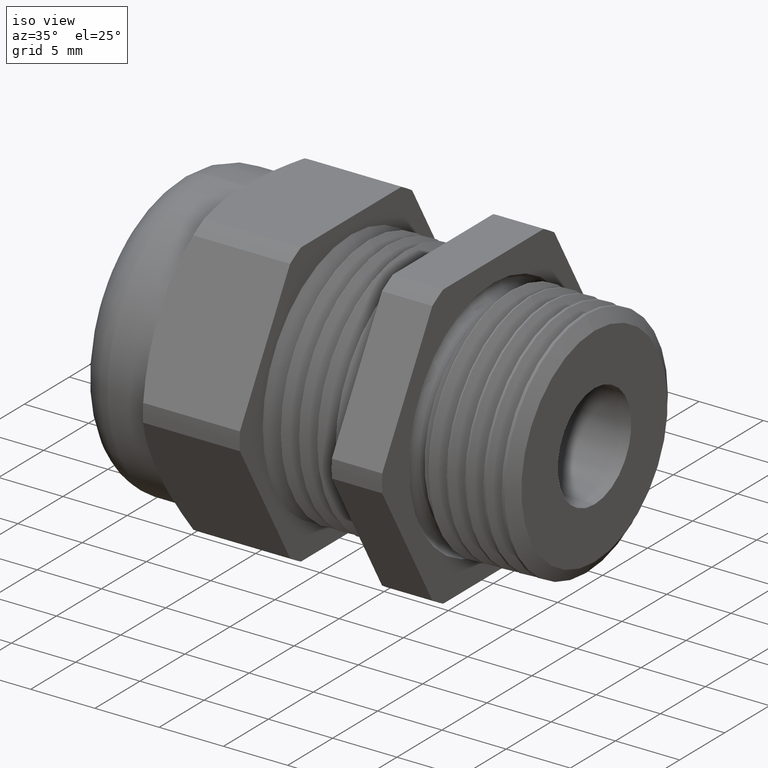
[diagram: clean part render]
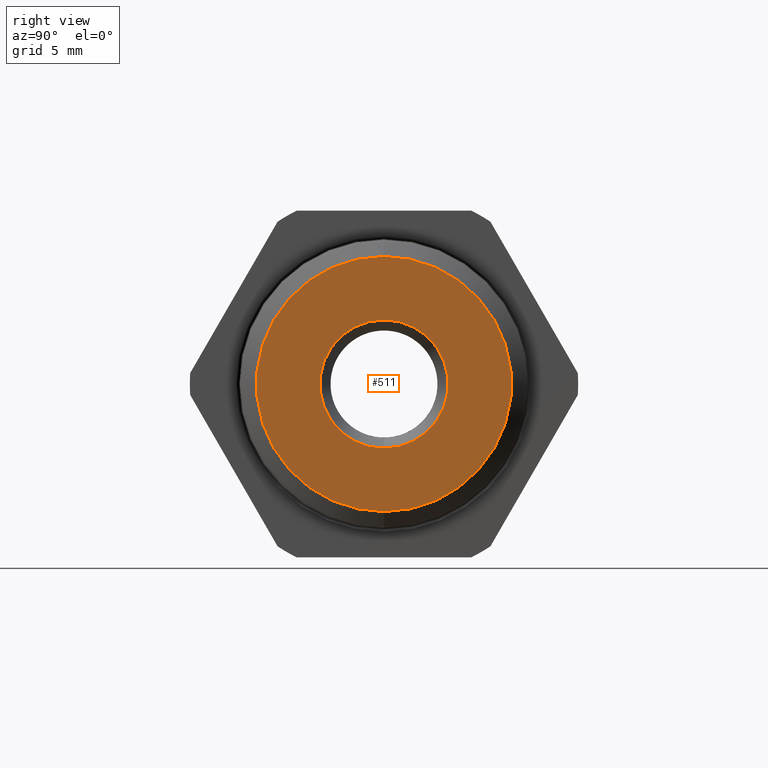
[diagram: tour spotlight — one face highlighted and labeled with its STEP entity id]
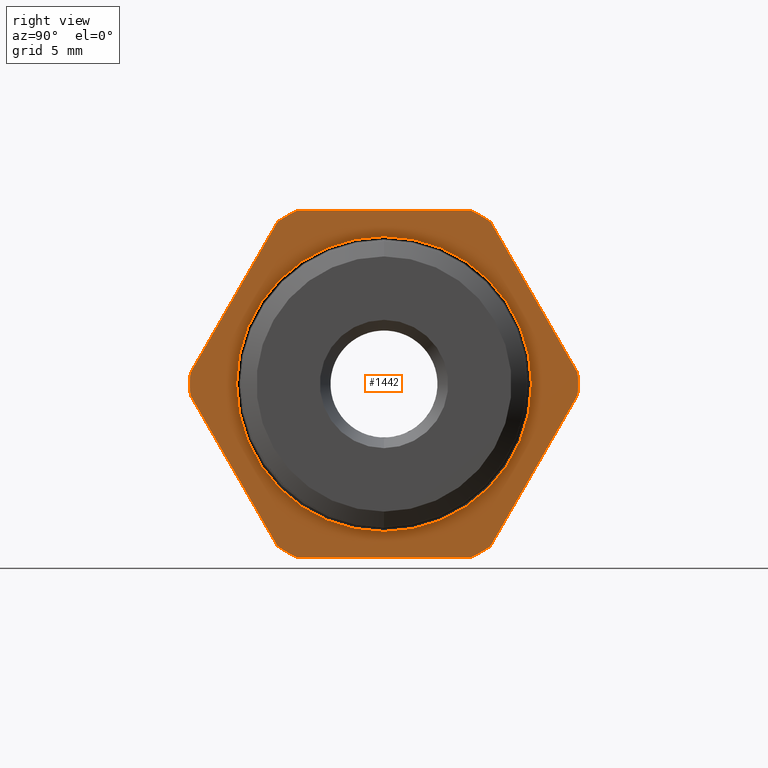
[diagram: tour spotlight — one face highlighted and labeled with its STEP entity id]
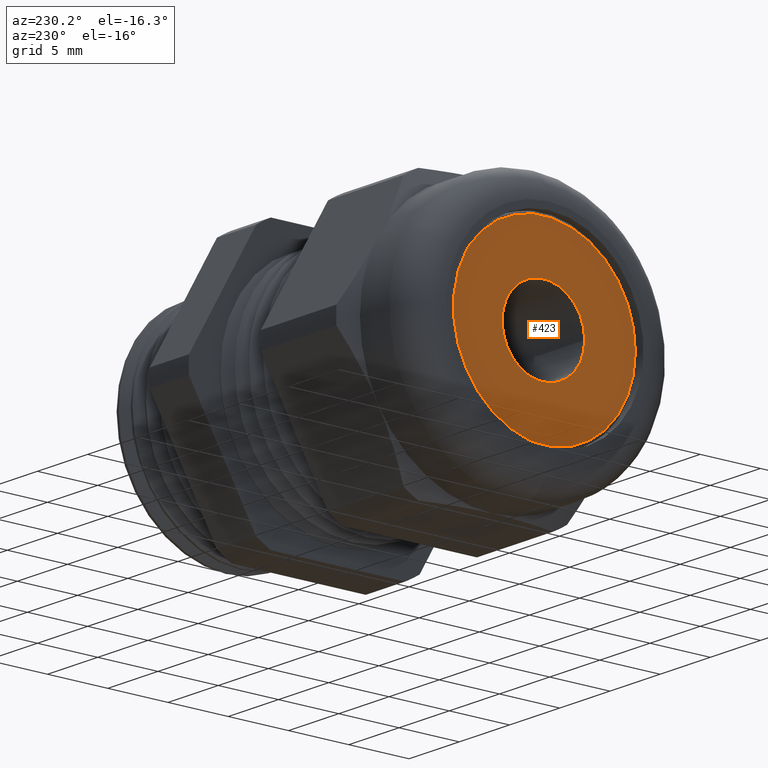
[diagram: tour spotlight — one face highlighted and labeled with its STEP entity id]
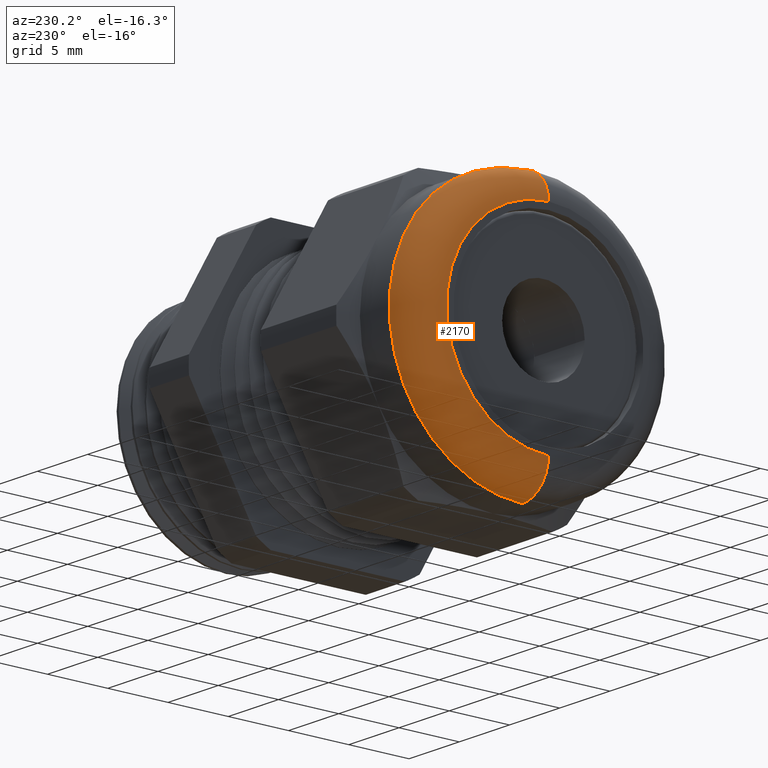
[diagram: tour spotlight — one face highlighted and labeled with its STEP entity id]
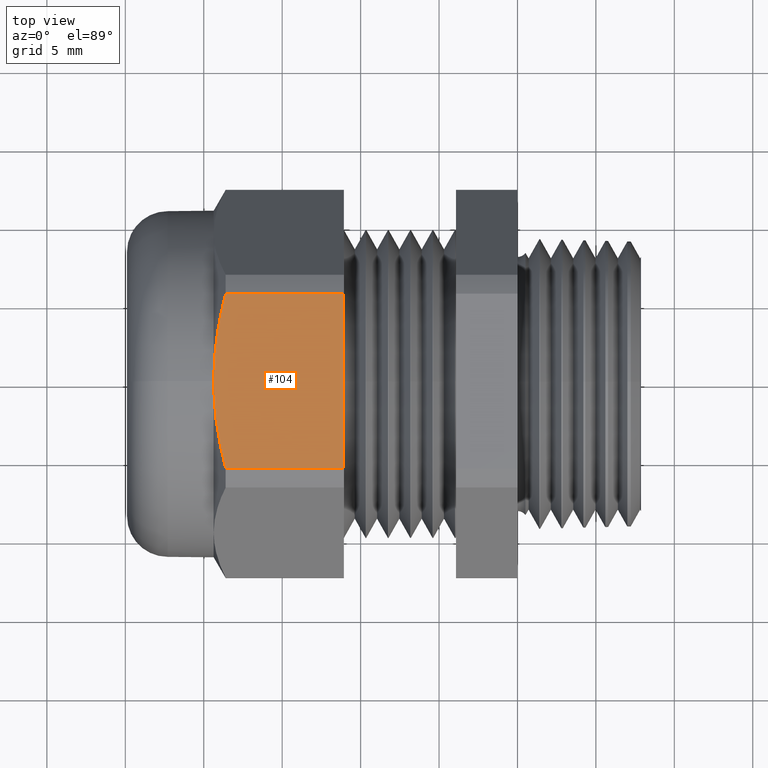
[diagram: tour spotlight — one face highlighted and labeled with its STEP entity id]
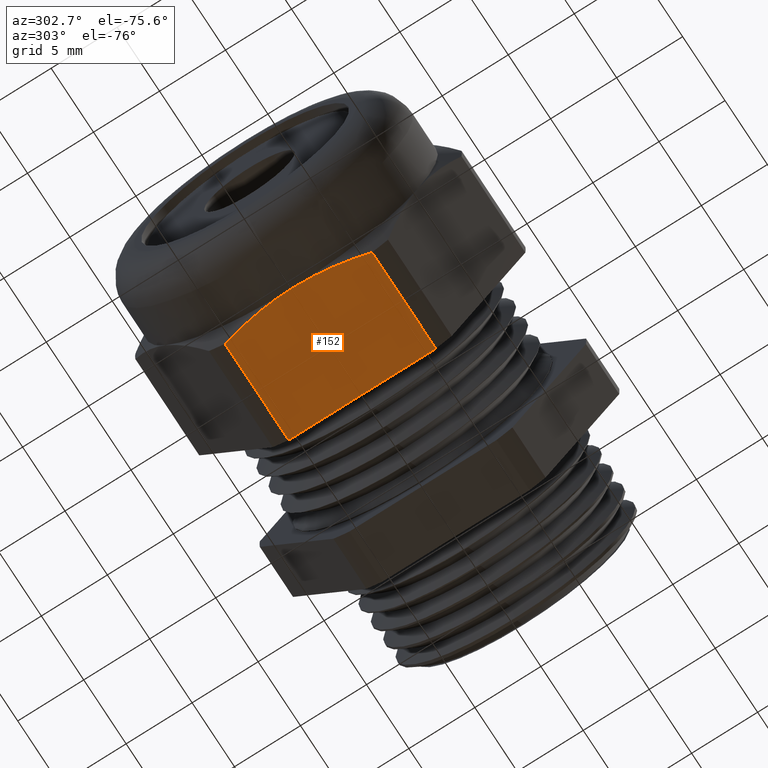
[diagram: tour spotlight — one face highlighted and labeled with its STEP entity id]
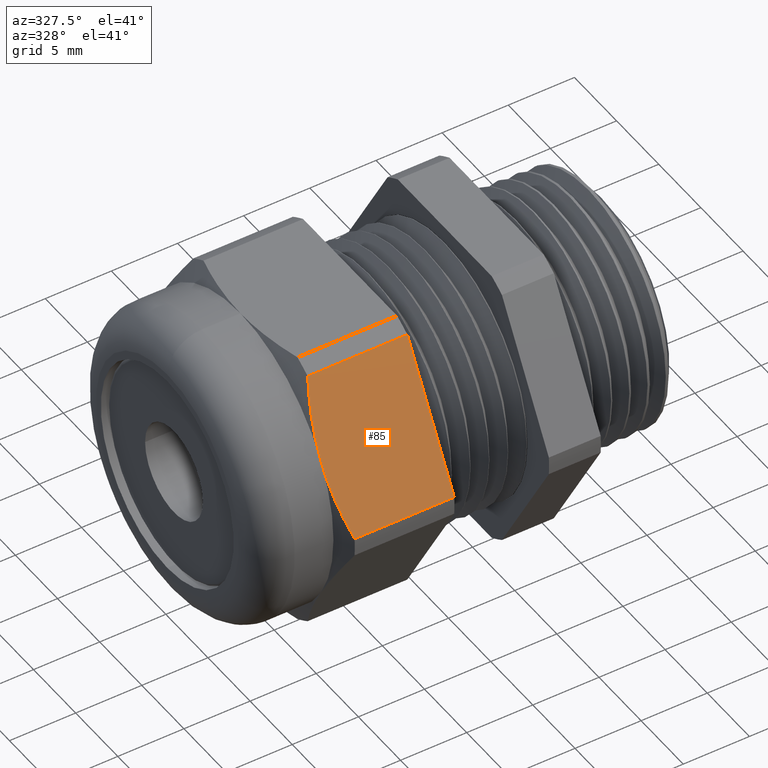
[diagram: tour spotlight — one face highlighted and labeled with its STEP entity id]
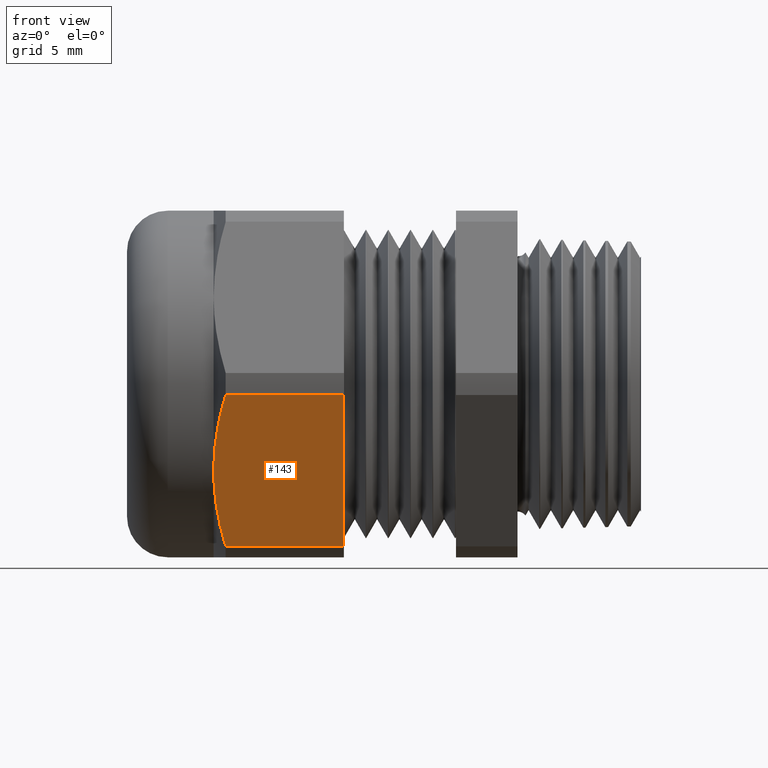
[diagram: tour spotlight — one face highlighted and labeled with its STEP entity id]
A machine part: a face-by-face anatomy tour. The part has 128 B-rep faces; the first image is the clean iso view, then the 8 largest visible faces are spotlighted one at a time (largest first), each with its STEP entity span.

Face 1 — right view, entity #511. In plain terms, the highlighted planar face has unit normal (-1, 0, 0).
Definition (entity closure, byte-faithful):
#331 = VERTEX_POINT ( 'NONE', #3162 ) ;
#444 = EDGE_CURVE ( 'NONE', #331, #446, #3338, .T. ) ;
#446 = VERTEX_POINT ( 'NONE', #3333 ) ;
#489 = EDGE_LOOP ( 'NONE', ( #494, #492 ) ) ;
#490 = ORIENTED_EDGE ( 'NONE', *, *, #491, .T. ) ;
#491 = EDGE_CURVE ( 'NONE', #2480, #2491, #3451, .T. ) ;
#492 = ORIENTED_EDGE ( 'NONE', *, *, #444, .F. ) ;
#494 = ORIENTED_EDGE ( 'NONE', *, *, #495, .F. ) ;
#495 = EDGE_CURVE ( 'NONE', #446, #331, #3441, .T. ) ;
#505 = ORIENTED_EDGE ( 'NONE', *, *, #2482, .T. ) ;
#509 = EDGE_LOOP ( 'NONE', ( #505, #490 ) ) ;
#511 = ADVANCED_FACE ( 'NONE', ( #3477, #3472 ), #3471, .F. ) ;
#1864 = CARTESIAN_POINT ( 'NONE',  ( 0.3100000000000000000, 0.0000000000000000000, -0.1610450739125957600 ) ) ;
#1880 = DIRECTION ( 'NONE',  ( 0.0000000000000000000, 0.0000000000000000000, 1.000000000000000000 ) ) ;
#1881 = DIRECTION ( 'NONE',  ( -1.000000000000000000, 0.0000000000000000000, 0.0000000000000000000 ) ) ;
#1882 = CARTESIAN_POINT ( 'NONE',  ( 0.3100000000000000000, 0.0000000000000000000, 0.0000000000000000000 ) ) ;
#1883 = AXIS2_PLACEMENT_3D ( 'NONE', #1882, #1881, #1880 ) ;
#1884 = CIRCLE ( 'NONE', #1883, 0.1610450739125957600 ) ;
#1886 = CARTESIAN_POINT ( 'NONE',  ( 0.3100000000000000000, 1.972233342855093300E-017, 0.1610450739125957600 ) ) ;
#2480 = VERTEX_POINT ( 'NONE', #1886 ) ;
#2482 = EDGE_CURVE ( 'NONE', #2491, #2480, #1884, .T. ) ;
#2491 = VERTEX_POINT ( 'NONE', #1864 ) ;
#3162 = CARTESIAN_POINT ( 'NONE',  ( 0.3100000000000000000, 3.921359272801560400E-017, 0.3202032843699720900 ) ) ;
#3333 = CARTESIAN_POINT ( 'NONE',  ( 0.3100000000000000000, 0.0000000000000000000, -0.3202032843699720900 ) ) ;
#3334 = DIRECTION ( 'NONE',  ( 0.0000000000000000000, 0.0000000000000000000, 1.000000000000000000 ) ) ;
#3335 = DIRECTION ( 'NONE',  ( -1.000000000000000000, 0.0000000000000000000, 0.0000000000000000000 ) ) ;
#3336 = CARTESIAN_POINT ( 'NONE',  ( 0.3100000000000000000, 0.0000000000000000000, 0.0000000000000000000 ) ) ;
#3337 = AXIS2_PLACEMENT_3D ( 'NONE', #3336, #3335, #3334 ) ;
#3338 = CIRCLE ( 'NONE', #3337, 0.3202032843699720300 ) ;
#3437 = DIRECTION ( 'NONE',  ( 0.0000000000000000000, 0.0000000000000000000, 1.000000000000000000 ) ) ;
#3438 = DIRECTION ( 'NONE',  ( -1.000000000000000000, 0.0000000000000000000, 0.0000000000000000000 ) ) ;
#3439 = CARTESIAN_POINT ( 'NONE',  ( 0.3100000000000000000, 0.0000000000000000000, 0.0000000000000000000 ) ) ;
#3440 = AXIS2_PLACEMENT_3D ( 'NONE', #3439, #3438, #3437 ) ;
#3441 = CIRCLE ( 'NONE', #3440, 0.3202032843699720300 ) ;
#3447 = DIRECTION ( 'NONE',  ( 0.0000000000000000000, 0.0000000000000000000, 1.000000000000000000 ) ) ;
#3448 = DIRECTION ( 'NONE',  ( -1.000000000000000000, 0.0000000000000000000, 0.0000000000000000000 ) ) ;
#3449 = CARTESIAN_POINT ( 'NONE',  ( 0.3100000000000000000, 0.0000000000000000000, 0.0000000000000000000 ) ) ;
#3450 = AXIS2_PLACEMENT_3D ( 'NONE', #3449, #3448, #3447 ) ;
#3451 = CIRCLE ( 'NONE', #3450, 0.1610450739125957600 ) ;
#3467 = DIRECTION ( 'NONE',  ( 0.0000000000000000000, 0.0000000000000000000, 1.000000000000000000 ) ) ;
#3468 = DIRECTION ( 'NONE',  ( -1.000000000000000000, 0.0000000000000000000, 0.0000000000000000000 ) ) ;
#3469 = CARTESIAN_POINT ( 'NONE',  ( 0.3100000000000000000, 0.3568823643135520300, 0.0000000000000000000 ) ) ;
#3470 = AXIS2_PLACEMENT_3D ( 'NONE', #3469, #3468, #3467 ) ;
#3471 = PLANE ( 'NONE',  #3470 ) ;
#3472 = FACE_OUTER_BOUND ( 'NONE', #489, .T. ) ;
#3477 = FACE_BOUND ( 'NONE', #509, .T. ) ;

Face 2 — right view, entity #1442. In plain terms, the highlighted planar face has unit normal (-1, 0, 0).
Definition (entity closure, byte-faithful):
#328 = VERTEX_POINT ( 'NONE', #3164 ) ;
#354 = EDGE_CURVE ( 'NONE', #328, #358, #3190, .T. ) ;
#358 = VERTEX_POINT ( 'NONE', #3178 ) ;
#482 = ORIENTED_EDGE ( 'NONE', *, *, #530, .T. ) ;
#487 = VERTEX_POINT ( 'NONE', #3452 ) ;
#488 = ORIENTED_EDGE ( 'NONE', *, *, #523, .F. ) ;
#493 = EDGE_CURVE ( 'NONE', #2154, #2157, #3446, .T. ) ;
#496 = ORIENTED_EDGE ( 'NONE', *, *, #524, .T. ) ;
#497 = ORIENTED_EDGE ( 'NONE', *, *, #521, .F. ) ;
#508 = ORIENTED_EDGE ( 'NONE', *, *, #526, .T. ) ;
#512 = EDGE_LOOP ( 'NONE', ( #488, #518 ) ) ;
#513 = ORIENTED_EDGE ( 'NONE', *, *, #519, .F. ) ;
#516 = EDGE_CURVE ( 'NONE', #532, #528, #3466, .T. ) ;
#518 = ORIENTED_EDGE ( 'NONE', *, *, #354, .F. ) ;
#519 = EDGE_CURVE ( 'NONE', #744, #487, #3518, .T. ) ;
#521 = EDGE_CURVE ( 'NONE', #1803, #531, #3507, .T. ) ;
#523 = EDGE_CURVE ( 'NONE', #358, #328, #3501, .T. ) ;
#524 = EDGE_CURVE ( 'NONE', #1803, #2157, #3502, .T. ) ;
#525 = ORIENTED_EDGE ( 'NONE', *, *, #516, .F. ) ;
#526 = EDGE_CURVE ( 'NONE', #745, #531, #3493, .T. ) ;
#527 = EDGE_CURVE ( 'NONE', #532, #487, #3489, .T. ) ;
#528 = VERTEX_POINT ( 'NONE', #3548 ) ;
#529 = ORIENTED_EDGE ( 'NONE', *, *, #493, .F. ) ;
#530 = EDGE_CURVE ( 'NONE', #2154, #528, #3547, .T. ) ;
#531 = VERTEX_POINT ( 'NONE', #3543 ) ;
#532 = VERTEX_POINT ( 'NONE', #3542 ) ;
#536 = ORIENTED_EDGE ( 'NONE', *, *, #527, .T. ) ;
#744 = VERTEX_POINT ( 'NONE', #1082 ) ;
#745 = VERTEX_POINT ( 'NONE', #1081 ) ;
#746 = EDGE_CURVE ( 'NONE', #745, #757, #1079, .T. ) ;
#748 = ORIENTED_EDGE ( 'NONE', *, *, #746, .F. ) ;
#749 = EDGE_LOOP ( 'NONE', ( #1511, #1727, #759, #748, #508, #497, #496, #529, #482, #525, #536, #513 ) ) ;
#755 = EDGE_CURVE ( 'NONE', #1575, #757, #1064, .T. ) ;
#757 = VERTEX_POINT ( 'NONE', #1126 ) ;
#759 = ORIENTED_EDGE ( 'NONE', *, *, #755, .T. ) ;
#1064 = LINE ( 'NONE', #1129, #1128 ) ;
#1075 = DIRECTION ( 'NONE',  ( 0.0000000000000000000, 0.0000000000000000000, 1.000000000000000000 ) ) ;
#1076 = DIRECTION ( 'NONE',  ( -1.000000000000000000, 0.0000000000000000000, 0.0000000000000000000 ) ) ;
#1077 = CARTESIAN_POINT ( 'NONE',  ( 0.0000000000000000000, 0.0000000000000000000, 0.0000000000000000000 ) ) ;
#1078 = AXIS2_PLACEMENT_3D ( 'NONE', #1077, #1076, #1075 ) ;
#1079 = CIRCLE ( 'NONE', #1078, 0.4872000000000000200 ) ;
#1081 = CARTESIAN_POINT ( 'NONE',  ( 0.0000000000000000000, 0.2670182247938400200, -0.4075108681102214700 ) ) ;
#1082 = CARTESIAN_POINT ( 'NONE',  ( 0.0000000000000000000, -0.4864238764986216800, -0.02748913188977874000 ) ) ;
#1126 = CARTESIAN_POINT ( 'NONE',  ( 0.0000000000000000000, 0.2194056517047814900, -0.4350000000000001600 ) ) ;
#1127 = DIRECTION ( 'NONE',  ( 0.0000000000000000000, 1.000000000000000000, 0.0000000000000000000 ) ) ;
#1128 = VECTOR ( 'NONE', #1127, 39.37007874015748100 ) ;
#1129 = CARTESIAN_POINT ( 'NONE',  ( 0.0000000000000000000, -0.2194056517047814900, -0.4350000000000001600 ) ) ;
#1136 = DIRECTION ( 'NONE',  ( 0.0000000000000000000, 0.5000000000000001100, -0.8660254037844384900 ) ) ;
#1137 = VECTOR ( 'NONE', #1136, 39.37007874015748900 ) ;
#1138 = CARTESIAN_POINT ( 'NONE',  ( 0.0000000000000000000, -0.4864238764986216800, -0.02748913188977874000 ) ) ;
#1139 = LINE ( 'NONE', #1138, #1137 ) ;
#1140 = DIRECTION ( 'NONE',  ( 0.0000000000000000000, 0.0000000000000000000, 1.000000000000000000 ) ) ;
#1141 = DIRECTION ( 'NONE',  ( -1.000000000000000000, 0.0000000000000000000, 0.0000000000000000000 ) ) ;
#1142 = CARTESIAN_POINT ( 'NONE',  ( 0.0000000000000000000, 0.4872000000000000200, 0.0000000000000000000 ) ) ;
#1143 = AXIS2_PLACEMENT_3D ( 'NONE', #1142, #1141, #1140 ) ;
#1145 = PLANE ( 'NONE',  #1143 ) ;
#1146 = FACE_BOUND ( 'NONE', #512, .T. ) ;
#1147 = FACE_OUTER_BOUND ( 'NONE', #749, .T. ) ;
#1177 = CARTESIAN_POINT ( 'NONE',  ( 0.0000000000000000000, 0.4864238764986217300, 0.02748913188977831700 ) ) ;
#1178 = DIRECTION ( 'NONE',  ( 0.0000000000000000000, 0.0000000000000000000, 1.000000000000000000 ) ) ;
#1179 = DIRECTION ( 'NONE',  ( -1.000000000000000000, 0.0000000000000000000, 0.0000000000000000000 ) ) ;
#1180 = CARTESIAN_POINT ( 'NONE',  ( 0.0000000000000000000, 0.0000000000000000000, 0.0000000000000000000 ) ) ;
#1181 = AXIS2_PLACEMENT_3D ( 'NONE', #1180, #1179, #1178 ) ;
#1182 = CIRCLE ( 'NONE', #1181, 0.4872000000000000200 ) ;
#1183 = CARTESIAN_POINT ( 'NONE',  ( 0.0000000000000000000, -0.2670182247938400200, -0.4075108681102214100 ) ) ;
#1189 = CARTESIAN_POINT ( 'NONE',  ( 0.0000000000000000000, -0.2194056517047815700, -0.4350000000000000000 ) ) ;
#1258 = CARTESIAN_POINT ( 'NONE',  ( 0.0000000000000000000, 0.2670182247938396900, 0.4075108681102216900 ) ) ;
#1259 = CARTESIAN_POINT ( 'NONE',  ( 0.0000000000000000000, 0.2194056517047817700, 0.4350000000000000000 ) ) ;
#1442 = ADVANCED_FACE ( 'NONE', ( #1147, #1146 ), #1145, .F. ) ;
#1444 = EDGE_CURVE ( 'NONE', #744, #1734, #1139, .T. ) ;
#1511 = ORIENTED_EDGE ( 'NONE', *, *, #1444, .T. ) ;
#1575 = VERTEX_POINT ( 'NONE', #1189 ) ;
#1727 = ORIENTED_EDGE ( 'NONE', *, *, #1738, .F. ) ;
#1734 = VERTEX_POINT ( 'NONE', #1183 ) ;
#1738 = EDGE_CURVE ( 'NONE', #1575, #1734, #1182, .T. ) ;
#1803 = VERTEX_POINT ( 'NONE', #1177 ) ;
#2154 = VERTEX_POINT ( 'NONE', #1259 ) ;
#2157 = VERTEX_POINT ( 'NONE', #1258 ) ;
#3164 = CARTESIAN_POINT ( 'NONE',  ( 0.0000000000000000000, 4.531193156845204800E-017, 0.3699999999999998800 ) ) ;
#3178 = CARTESIAN_POINT ( 'NONE',  ( 0.0000000000000000000, 0.0000000000000000000, -0.3699999999999998800 ) ) ;
#3186 = DIRECTION ( 'NONE',  ( 0.0000000000000000000, 0.0000000000000000000, 1.000000000000000000 ) ) ;
#3187 = DIRECTION ( 'NONE',  ( 1.000000000000000000, 0.0000000000000000000, 0.0000000000000000000 ) ) ;
#3188 = CARTESIAN_POINT ( 'NONE',  ( 0.0000000000000000000, 0.0000000000000000000, 0.0000000000000000000 ) ) ;
#3189 = AXIS2_PLACEMENT_3D ( 'NONE', #3188, #3187, #3186 ) ;
#3190 = CIRCLE ( 'NONE', #3189, 0.3699999999999998800 ) ;
#3442 = DIRECTION ( 'NONE',  ( 0.0000000000000000000, 0.0000000000000000000, 1.000000000000000000 ) ) ;
#3443 = DIRECTION ( 'NONE',  ( -1.000000000000000000, 0.0000000000000000000, 0.0000000000000000000 ) ) ;
#3444 = CARTESIAN_POINT ( 'NONE',  ( 0.0000000000000000000, 0.0000000000000000000, 0.0000000000000000000 ) ) ;
#3445 = AXIS2_PLACEMENT_3D ( 'NONE', #3444, #3443, #3442 ) ;
#3446 = CIRCLE ( 'NONE', #3445, 0.4872000000000000200 ) ;
#3452 = CARTESIAN_POINT ( 'NONE',  ( 0.0000000000000000000, -0.4864238764986217300, 0.02748913188977833100 ) ) ;
#3462 = DIRECTION ( 'NONE',  ( 0.0000000000000000000, 0.0000000000000000000, 1.000000000000000000 ) ) ;
#3463 = DIRECTION ( 'NONE',  ( -1.000000000000000000, 0.0000000000000000000, 0.0000000000000000000 ) ) ;
#3464 = CARTESIAN_POINT ( 'NONE',  ( 0.0000000000000000000, 0.0000000000000000000, 0.0000000000000000000 ) ) ;
#3465 = AXIS2_PLACEMENT_3D ( 'NONE', #3464, #3463, #3462 ) ;
#3466 = CIRCLE ( 'NONE', #3465, 0.4872000000000000200 ) ;
#3488 = CARTESIAN_POINT ( 'NONE',  ( 0.0000000000000000000, -0.2670182247938399100, 0.4075108681102214700 ) ) ;
#3489 = LINE ( 'NONE', #3488, #3550 ) ;
#3490 = DIRECTION ( 'NONE',  ( 0.0000000000000000000, 0.4999999999999998300, 0.8660254037844386000 ) ) ;
#3491 = VECTOR ( 'NONE', #3490, 39.37007874015748900 ) ;
#3492 = CARTESIAN_POINT ( 'NONE',  ( 0.0000000000000000000, 0.2670182247938400200, -0.4075108681102214700 ) ) ;
#3493 = LINE ( 'NONE', #3492, #3491 ) ;
#3494 = DIRECTION ( 'NONE',  ( 0.0000000000000000000, -0.5000000000000001100, 0.8660254037844386000 ) ) ;
#3495 = VECTOR ( 'NONE', #3494, 39.37007874015748900 ) ;
#3496 = CARTESIAN_POINT ( 'NONE',  ( 0.0000000000000000000, 0.4864238764986217300, 0.02748913188977833100 ) ) ;
#3497 = DIRECTION ( 'NONE',  ( 0.0000000000000000000, 0.0000000000000000000, 1.000000000000000000 ) ) ;
#3498 = DIRECTION ( 'NONE',  ( 1.000000000000000000, 0.0000000000000000000, 0.0000000000000000000 ) ) ;
#3499 = CARTESIAN_POINT ( 'NONE',  ( 0.0000000000000000000, 0.0000000000000000000, 0.0000000000000000000 ) ) ;
#3500 = AXIS2_PLACEMENT_3D ( 'NONE', #3499, #3498, #3497 ) ;
#3501 = CIRCLE ( 'NONE', #3500, 0.3699999999999998800 ) ;
#3502 = LINE ( 'NONE', #3496, #3495 ) ;
#3504 = DIRECTION ( 'NONE',  ( 0.0000000000000000000, 0.0000000000000000000, 1.000000000000000000 ) ) ;
#3505 = DIRECTION ( 'NONE',  ( -1.000000000000000000, 0.0000000000000000000, 0.0000000000000000000 ) ) ;
#3506 = AXIS2_PLACEMENT_3D ( 'NONE', #3511, #3505, #3504 ) ;
#3507 = CIRCLE ( 'NONE', #3506, 0.4872000000000000200 ) ;
#3511 = CARTESIAN_POINT ( 'NONE',  ( 0.0000000000000000000, 0.0000000000000000000, 0.0000000000000000000 ) ) ;
#3514 = DIRECTION ( 'NONE',  ( 0.0000000000000000000, 0.0000000000000000000, 1.000000000000000000 ) ) ;
#3515 = DIRECTION ( 'NONE',  ( -1.000000000000000000, 0.0000000000000000000, 0.0000000000000000000 ) ) ;
#3516 = CARTESIAN_POINT ( 'NONE',  ( 0.0000000000000000000, 0.0000000000000000000, 0.0000000000000000000 ) ) ;
#3517 = AXIS2_PLACEMENT_3D ( 'NONE', #3516, #3515, #3514 ) ;
#3518 = CIRCLE ( 'NONE', #3517, 0.4872000000000000200 ) ;
#3542 = CARTESIAN_POINT ( 'NONE',  ( 0.0000000000000000000, -0.2670182247938398000, 0.4075108681102215200 ) ) ;
#3543 = CARTESIAN_POINT ( 'NONE',  ( 0.0000000000000000000, 0.4864238764986216800, -0.02748913188977846600 ) ) ;
#3544 = DIRECTION ( 'NONE',  ( 0.0000000000000000000, -1.000000000000000000, 0.0000000000000000000 ) ) ;
#3545 = VECTOR ( 'NONE', #3544, 39.37007874015748100 ) ;
#3546 = CARTESIAN_POINT ( 'NONE',  ( 0.0000000000000000000, 0.2194056517047817700, 0.4350000000000000000 ) ) ;
#3547 = LINE ( 'NONE', #3546, #3545 ) ;
#3548 = CARTESIAN_POINT ( 'NONE',  ( 0.0000000000000000000, -0.2194056517047817700, 0.4350000000000000000 ) ) ;
#3549 = DIRECTION ( 'NONE',  ( 0.0000000000000000000, -0.5000000000000000000, -0.8660254037844386000 ) ) ;
#3550 = VECTOR ( 'NONE', #3549, 39.37007874015748900 ) ;

Face 3 — auxiliary view, entity #423. In plain terms, the highlighted planar face has unit normal (-1, -0, 0).
Definition (entity closure, byte-faithful):
#373 = ORIENTED_EDGE ( 'NONE', *, *, #438, .T. ) ;
#389 = VERTEX_POINT ( 'NONE', #3239 ) ;
#412 = ORIENTED_EDGE ( 'NONE', *, *, #439, .T. ) ;
#414 = EDGE_LOOP ( 'NONE', ( #412, #373 ) ) ;
#415 = EDGE_CURVE ( 'NONE', #389, #430, #3324, .T. ) ;
#419 = ORIENTED_EDGE ( 'NONE', *, *, #415, .T. ) ;
#420 = ORIENTED_EDGE ( 'NONE', *, *, #437, .T. ) ;
#422 = EDGE_LOOP ( 'NONE', ( #420, #419 ) ) ;
#423 = ADVANCED_FACE ( 'NONE', ( #3312, #3311 ), #3310, .T. ) ;
#430 = VERTEX_POINT ( 'NONE', #3305 ) ;
#435 = VERTEX_POINT ( 'NONE', #3298 ) ;
#436 = VERTEX_POINT ( 'NONE', #3297 ) ;
#437 = EDGE_CURVE ( 'NONE', #430, #389, #3357, .T. ) ;
#438 = EDGE_CURVE ( 'NONE', #435, #436, #3352, .T. ) ;
#439 = EDGE_CURVE ( 'NONE', #436, #435, #3348, .T. ) ;
#3239 = CARTESIAN_POINT ( 'NONE',  ( -0.9599999999999998500, 0.3002499999999999600, 3.738234354397296900E-017 ) ) ;
#3297 = CARTESIAN_POINT ( 'NONE',  ( -0.9599999999999998500, 0.1349999999999999800, 0.0000000000000000000 ) ) ;
#3298 = CARTESIAN_POINT ( 'NONE',  ( -0.9599999999999998500, -0.1350000000000003400, 1.653273178848929000E-017 ) ) ;
#3305 = CARTESIAN_POINT ( 'NONE',  ( -0.9599999999999998500, -0.3002500000000002900, 0.0000000000000000000 ) ) ;
#3306 = DIRECTION ( 'NONE',  ( 1.214306433183765200E-016, -1.000000000000000000, 0.0000000000000000000 ) ) ;
#3307 = DIRECTION ( 'NONE',  ( -1.000000000000000000, -1.214306433183765200E-016, 0.0000000000000000000 ) ) ;
#3308 = CARTESIAN_POINT ( 'NONE',  ( -0.9599999999999998500, 0.3102499999999999700, 0.0000000000000000000 ) ) ;
#3309 = AXIS2_PLACEMENT_3D ( 'NONE', #3308, #3307, #3306 ) ;
#3310 = PLANE ( 'NONE',  #3309 ) ;
#3311 = FACE_BOUND ( 'NONE', #414, .T. ) ;
#3312 = FACE_OUTER_BOUND ( 'NONE', #422, .T. ) ;
#3320 = DIRECTION ( 'NONE',  ( 0.0000000000000000000, -1.000000000000000000, 0.0000000000000000000 ) ) ;
#3321 = DIRECTION ( 'NONE',  ( -1.000000000000000000, -1.214306433183765200E-016, 0.0000000000000000000 ) ) ;
#3322 = CARTESIAN_POINT ( 'NONE',  ( -0.9599999999999998500, -1.622878825834062500E-016, 0.0000000000000000000 ) ) ;
#3323 = AXIS2_PLACEMENT_3D ( 'NONE', #3322, #3321, #3320 ) ;
#3324 = CIRCLE ( 'NONE', #3323, 0.3002500000000001300 ) ;
#3344 = DIRECTION ( 'NONE',  ( 0.0000000000000000000, 1.000000000000000000, 0.0000000000000000000 ) ) ;
#3345 = DIRECTION ( 'NONE',  ( 1.000000000000000000, 1.214306433183765200E-016, 0.0000000000000000000 ) ) ;
#3346 = CARTESIAN_POINT ( 'NONE',  ( -0.9599999999999998500, -1.622878825834062500E-016, 0.0000000000000000000 ) ) ;
#3347 = AXIS2_PLACEMENT_3D ( 'NONE', #3346, #3345, #3344 ) ;
#3348 = CIRCLE ( 'NONE', #3347, 0.1350000000000001500 ) ;
#3349 = DIRECTION ( 'NONE',  ( 0.0000000000000000000, 1.000000000000000000, 0.0000000000000000000 ) ) ;
#3350 = DIRECTION ( 'NONE',  ( 1.000000000000000000, 1.214306433183765200E-016, 0.0000000000000000000 ) ) ;
#3351 = AXIS2_PLACEMENT_3D ( 'NONE', #3358, #3350, #3349 ) ;
#3352 = CIRCLE ( 'NONE', #3351, 0.1350000000000001500 ) ;
#3353 = DIRECTION ( 'NONE',  ( 0.0000000000000000000, -1.000000000000000000, 0.0000000000000000000 ) ) ;
#3354 = DIRECTION ( 'NONE',  ( -1.000000000000000000, -1.214306433183765200E-016, 0.0000000000000000000 ) ) ;
#3355 = CARTESIAN_POINT ( 'NONE',  ( -0.9599999999999998500, -1.622878825834062500E-016, 0.0000000000000000000 ) ) ;
#3356 = AXIS2_PLACEMENT_3D ( 'NONE', #3355, #3354, #3353 ) ;
#3357 = CIRCLE ( 'NONE', #3356, 0.3002500000000001300 ) ;
#3358 = CARTESIAN_POINT ( 'NONE',  ( -0.9599999999999998500, -1.622878825834062500E-016, 0.0000000000000000000 ) ) ;

Face 4 — auxiliary view, entity #2170. In plain terms, the highlighted toroidal blend (fillet) surface has major radius 8.4531 mm and minor (blend) radius 2.5959 mm.
Definition (entity closure, byte-faithful):
#1228 = CARTESIAN_POINT ( 'NONE',  ( -0.9799999999999999800, 4.701419061926686900E-017, 0.3327999999999998700 ) ) ;
#1229 = DIRECTION ( 'NONE',  ( 0.0000000000000000000, 0.0000000000000000000, -1.000000000000000000 ) ) ;
#1230 = DIRECTION ( 'NONE',  ( 1.000000000000000000, 0.0000000000000000000, 0.0000000000000000000 ) ) ;
#1231 = AXIS2_PLACEMENT_3D ( 'NONE', #1238, #1230, #1229 ) ;
#1232 = TOROIDAL_SURFACE ( 'NONE', #1231, 0.3327999999999998700, 0.1022000000000000300 ) ;
#1233 = FACE_OUTER_BOUND ( 'NONE', #2483, .T. ) ;
#1238 = CARTESIAN_POINT ( 'NONE',  ( -0.8777999999999998000, 0.0000000000000000000, 0.0000000000000000000 ) ) ;
#1907 = DIRECTION ( 'NONE',  ( 0.0000000000000000000, 0.0000000000000000000, -1.000000000000000000 ) ) ;
#1908 = DIRECTION ( 'NONE',  ( 0.0000000000000000000, -1.000000000000000000, 0.0000000000000000000 ) ) ;
#1909 = CARTESIAN_POINT ( 'NONE',  ( -0.8777999999999998000, 0.0000000000000000000, -0.3327999999999998700 ) ) ;
#1910 = AXIS2_PLACEMENT_3D ( 'NONE', #1909, #1908, #1907 ) ;
#1911 = CIRCLE ( 'NONE', #1910, 0.1022000000000000000 ) ;
#1936 = DIRECTION ( 'NONE',  ( 0.0000000000000000000, 0.0000000000000000000, -1.000000000000000000 ) ) ;
#1937 = DIRECTION ( 'NONE',  ( -1.000000000000000000, 0.0000000000000000000, 0.0000000000000000000 ) ) ;
#1938 = CARTESIAN_POINT ( 'NONE',  ( -0.9799999999999999800, 0.0000000000000000000, 0.0000000000000000000 ) ) ;
#1939 = AXIS2_PLACEMENT_3D ( 'NONE', #1938, #1937, #1936 ) ;
#1940 = CIRCLE ( 'NONE', #1939, 0.3327999999999998700 ) ;
#1941 = CARTESIAN_POINT ( 'NONE',  ( -0.8777999999999998000, 5.327213576290984500E-017, -0.4349999999999998900 ) ) ;
#1942 = DIRECTION ( 'NONE',  ( 0.0000000000000000000, 0.0000000000000000000, -1.000000000000000000 ) ) ;
#1943 = DIRECTION ( 'NONE',  ( 1.000000000000000000, 0.0000000000000000000, 0.0000000000000000000 ) ) ;
#1944 = CARTESIAN_POINT ( 'NONE',  ( -0.8777999999999998000, 0.0000000000000000000, 0.0000000000000000000 ) ) ;
#1945 = AXIS2_PLACEMENT_3D ( 'NONE', #1944, #1943, #1942 ) ;
#1946 = CIRCLE ( 'NONE', #1945, 0.4349999999999998900 ) ;
#1972 = DIRECTION ( 'NONE',  ( 0.0000000000000000000, 1.224646799147353500E-016, 1.000000000000000000 ) ) ;
#1973 = DIRECTION ( 'NONE',  ( 0.0000000000000000000, 1.000000000000000000, -1.224646799147353200E-016 ) ) ;
#1974 = CARTESIAN_POINT ( 'NONE',  ( -0.8777999999999998000, 4.075624547562390000E-017, 0.3327999999999998700 ) ) ;
#1975 = AXIS2_PLACEMENT_3D ( 'NONE', #1974, #1973, #1972 ) ;
#1976 = CIRCLE ( 'NONE', #1975, 0.1022000000000000000 ) ;
#1978 = CARTESIAN_POINT ( 'NONE',  ( -0.9799999999999999800, 0.0000000000000000000, -0.3327999999999998700 ) ) ;
#2015 = CARTESIAN_POINT ( 'NONE',  ( -0.8777999999999998000, 0.0000000000000000000, 0.4349999999999998900 ) ) ;
#2170 = ADVANCED_FACE ( 'NONE', ( #1233 ), #1232, .T. ) ;
#2171 = VERTEX_POINT ( 'NONE', #1228 ) ;
#2483 = EDGE_LOOP ( 'NONE', ( #2517, #2529, #2544, #2501 ) ) ;
#2501 = ORIENTED_EDGE ( 'NONE', *, *, #2502, .F. ) ;
#2502 = EDGE_CURVE ( 'NONE', #2528, #2514, #1911, .T. ) ;
#2513 = EDGE_CURVE ( 'NONE', #2514, #2543, #1946, .T. ) ;
#2514 = VERTEX_POINT ( 'NONE', #1941 ) ;
#2517 = ORIENTED_EDGE ( 'NONE', *, *, #2518, .F. ) ;
#2518 = EDGE_CURVE ( 'NONE', #2171, #2528, #1940, .T. ) ;
#2528 = VERTEX_POINT ( 'NONE', #1978 ) ;
#2529 = ORIENTED_EDGE ( 'NONE', *, *, #2530, .T. ) ;
#2530 = EDGE_CURVE ( 'NONE', #2171, #2543, #1976, .T. ) ;
#2543 = VERTEX_POINT ( 'NONE', #2015 ) ;
#2544 = ORIENTED_EDGE ( 'NONE', *, *, #2513, .F. ) ;

Face 5 — top view, entity #104. In plain terms, the highlighted planar face has unit normal (0, 0, 1).
Definition (entity closure, byte-faithful):
#55 = VERTEX_POINT ( 'NONE', #2637 ) ;
#72 = VERTEX_POINT ( 'NONE', #2671 ) ;
#76 = EDGE_CURVE ( 'NONE', #55, #72, #2663, .T. ) ;
#87 = EDGE_CURVE ( 'NONE', #94, #89, #2697, .T. ) ;
#89 = VERTEX_POINT ( 'NONE', #2693 ) ;
#94 = VERTEX_POINT ( 'NONE', #2687 ) ;
#97 = ORIENTED_EDGE ( 'NONE', *, *, #224, .T. ) ;
#99 = EDGE_CURVE ( 'NONE', #55, #2525, #2745, .T. ) ;
#100 = ORIENTED_EDGE ( 'NONE', *, *, #99, .T. ) ;
#102 = EDGE_LOOP ( 'NONE', ( #103, #100, #97, #215, #218 ) ) ;
#103 = ORIENTED_EDGE ( 'NONE', *, *, #76, .F. ) ;
#104 = ADVANCED_FACE ( 'NONE', ( #2747 ), #2746, .T. ) ;
#215 = ORIENTED_EDGE ( 'NONE', *, *, #87, .T. ) ;
#218 = ORIENTED_EDGE ( 'NONE', *, *, #226, .T. ) ;
#224 = EDGE_CURVE ( 'NONE', #2525, #94, #2996, .T. ) ;
#226 = EDGE_CURVE ( 'NONE', #89, #72, #2995, .T. ) ;
#1984 = CARTESIAN_POINT ( 'NONE',  ( -0.7624999999999999600, 0.0000000000000000000, 0.4350000000000000000 ) ) ;
#2525 = VERTEX_POINT ( 'NONE', #1984 ) ;
#2637 = CARTESIAN_POINT ( 'NONE',  ( -0.7323623159483017000, 0.2194056517047817700, 0.4350000000000000000 ) ) ;
#2656 = DIRECTION ( 'NONE',  ( 1.000000000000000000, 0.0000000000000000000, 0.0000000000000000000 ) ) ;
#2657 = VECTOR ( 'NONE', #2656, 39.37007874015748100 ) ;
#2658 = CARTESIAN_POINT ( 'NONE',  ( -2.154289792128107500, 0.2194056517047817700, 0.4350000000000000000 ) ) ;
#2663 = LINE ( 'NONE', #2658, #2657 ) ;
#2671 = CARTESIAN_POINT ( 'NONE',  ( -0.4358333333333330200, 0.2194056517047817700, 0.4350000000000000000 ) ) ;
#2687 = CARTESIAN_POINT ( 'NONE',  ( -0.7323623159483017000, -0.2194056517047817100, 0.4349999999999999400 ) ) ;
#2693 = CARTESIAN_POINT ( 'NONE',  ( -0.4358333333333330200, -0.2194056517047817700, 0.4350000000000000000 ) ) ;
#2694 = DIRECTION ( 'NONE',  ( 1.000000000000000000, 0.0000000000000000000, 0.0000000000000000000 ) ) ;
#2695 = VECTOR ( 'NONE', #2694, 39.37007874015748100 ) ;
#2696 = CARTESIAN_POINT ( 'NONE',  ( -2.154289792128107500, -0.2194056517047817700, 0.4350000000000000000 ) ) ;
#2697 = LINE ( 'NONE', #2696, #2695 ) ;
#2732 = DIRECTION ( 'NONE',  ( 1.000000000000000000, 0.0000000000000000000, 0.0000000000000000000 ) ) ;
#2733 = DIRECTION ( 'NONE',  ( 0.0000000000000000000, 0.0000000000000000000, 1.000000000000000000 ) ) ;
#2734 = CARTESIAN_POINT ( 'NONE',  ( -2.154289792128107500, 0.2194056517047817700, 0.4350000000000000000 ) ) ;
#2736 = CARTESIAN_POINT ( 'NONE',  ( -0.7624999999999999600, 0.0000000000000000000, 0.4350000000000000000 ) ) ;
#2737 = CARTESIAN_POINT ( 'NONE',  ( -0.7625000000000001800, 0.01845750087904736100, 0.4350000000000000000 ) ) ;
#2738 = CARTESIAN_POINT ( 'NONE',  ( -0.7618190148783531300, 0.03695822653181715000, 0.4349999999999999400 ) ) ;
#2739 = CARTESIAN_POINT ( 'NONE',  ( -0.7591089976659172200, 0.07404524362044975800, 0.4350000000000000000 ) ) ;
#2740 = CARTESIAN_POINT ( 'NONE',  ( -0.7570723573873923100, 0.09264889576320896300, 0.4349999999999999400 ) ) ;
#2741 = CARTESIAN_POINT ( 'NONE',  ( -0.7492072023194167300, 0.1477404700659322700, 0.4349999999999998900 ) ) ;
#2742 = CARTESIAN_POINT ( 'NONE',  ( -0.7416179332394787800, 0.1838076610021199300, 0.4349999999999999400 ) ) ;
#2743 = CARTESIAN_POINT ( 'NONE',  ( -0.7323623159483017000, 0.2194056517047817700, 0.4350000000000000000 ) ) ;
#2744 = AXIS2_PLACEMENT_3D ( 'NONE', #2734, #2733, #2732 ) ;
#2745 = B_SPLINE_CURVE_WITH_KNOTS ( 'NONE', 3,
 ( #2743, #2742, #2741, #2740, #2739, #2738, #2737, #2736 ),
 .UNSPECIFIED., .F., .F.,
 ( 4, 2, 2, 4 ),
 ( 0.005926728940178800300, 0.008728918138372530900, 0.01013001273746939700, 0.01153110733656626300 ),
 .UNSPECIFIED. ) ;
#2746 = PLANE ( 'NONE',  #2744 ) ;
#2747 = FACE_OUTER_BOUND ( 'NONE', #102, .T. ) ;
#2986 = CARTESIAN_POINT ( 'NONE',  ( -0.7323623159483017000, -0.2194056517047817100, 0.4349999999999999400 ) ) ;
#2987 = CARTESIAN_POINT ( 'NONE',  ( -0.7416945367874648900, -0.1835130364186775600, 0.4350000000000000000 ) ) ;
#2988 = CARTESIAN_POINT ( 'NONE',  ( -0.7493603293836336200, -0.1468899604666385700, 0.4349999999999999400 ) ) ;
#2989 = CARTESIAN_POINT ( 'NONE',  ( -0.7597470809368579400, -0.07368725474970010100, 0.4350000000000000500 ) ) ;
#2990 = CARTESIAN_POINT ( 'NONE',  ( -0.7624999999999999600, -0.03693099661376435200, 0.4349999999999999400 ) ) ;
#2991 = CARTESIAN_POINT ( 'NONE',  ( -0.7624999999999999600, 0.0000000000000000000, 0.4350000000000000000 ) ) ;
#2992 = DIRECTION ( 'NONE',  ( 0.0000000000000000000, 1.000000000000000000, 0.0000000000000000000 ) ) ;
#2993 = VECTOR ( 'NONE', #2992, 39.37007874015748100 ) ;
#2994 = CARTESIAN_POINT ( 'NONE',  ( -0.4358333333333332400, 0.3869000000000000200, 0.4350000000000000000 ) ) ;
#2995 = LINE ( 'NONE', #2994, #2993 ) ;
#2996 = B_SPLINE_CURVE_WITH_KNOTS ( 'NONE', 3,
 ( #2991, #2990, #2989, #2988, #2987, #2986 ),
 .UNSPECIFIED., .F., .F.,
 ( 4, 2, 4 ),
 ( 0.01153110733656626300, 0.01433451069186821500, 0.01713791404717016800 ),
 .UNSPECIFIED. ) ;

Face 6 — auxiliary view, entity #152. In plain terms, the highlighted planar face has unit normal (0, 0, -1).
Definition (entity closure, byte-faithful):
#140 = ORIENTED_EDGE ( 'NONE', *, *, #141, .T. ) ;
#141 = EDGE_CURVE ( 'NONE', #2507, #345, #2813, .T. ) ;
#142 = ORIENTED_EDGE ( 'NONE', *, *, #144, .T. ) ;
#144 = EDGE_CURVE ( 'NONE', #588, #569, #2856, .T. ) ;
#145 = ORIENTED_EDGE ( 'NONE', *, *, #591, .T. ) ;
#146 = ORIENTED_EDGE ( 'NONE', *, *, #149, .T. ) ;
#147 = ORIENTED_EDGE ( 'NONE', *, *, #574, .F. ) ;
#148 = EDGE_LOOP ( 'NONE', ( #147, #146, #140, #145, #142 ) ) ;
#149 = EDGE_CURVE ( 'NONE', #575, #2507, #2852, .T. ) ;
#152 = ADVANCED_FACE ( 'NONE', ( #2849 ), #2848, .T. ) ;
#345 = VERTEX_POINT ( 'NONE', #3142 ) ;
#569 = VERTEX_POINT ( 'NONE', #806 ) ;
#574 = EDGE_CURVE ( 'NONE', #575, #569, #804, .T. ) ;
#575 = VERTEX_POINT ( 'NONE', #865 ) ;
#588 = VERTEX_POINT ( 'NONE', #844 ) ;
#591 = EDGE_CURVE ( 'NONE', #345, #588, #898, .T. ) ;
#801 = DIRECTION ( 'NONE',  ( 1.000000000000000000, 0.0000000000000000000, 0.0000000000000000000 ) ) ;
#802 = VECTOR ( 'NONE', #801, 39.37007874015748100 ) ;
#803 = CARTESIAN_POINT ( 'NONE',  ( -2.154289792128107500, -0.2194056517047815700, -0.4350000000000000000 ) ) ;
#804 = LINE ( 'NONE', #803, #802 ) ;
#806 = CARTESIAN_POINT ( 'NONE',  ( -0.4358333333333330200, -0.2194056517047815700, -0.4350000000000000000 ) ) ;
#844 = CARTESIAN_POINT ( 'NONE',  ( -0.4358333333333330200, 0.2194056517047814900, -0.4350000000000001600 ) ) ;
#865 = CARTESIAN_POINT ( 'NONE',  ( -0.7323623159483017000, -0.2194056517047815700, -0.4350000000000000000 ) ) ;
#895 = DIRECTION ( 'NONE',  ( 1.000000000000000000, 0.0000000000000000000, 0.0000000000000000000 ) ) ;
#896 = VECTOR ( 'NONE', #895, 39.37007874015748100 ) ;
#897 = CARTESIAN_POINT ( 'NONE',  ( -2.154289792128107500, 0.2194056517047814900, -0.4350000000000001600 ) ) ;
#898 = LINE ( 'NONE', #897, #896 ) ;
#1958 = CARTESIAN_POINT ( 'NONE',  ( -0.7624999999999999600, 0.0000000000000000000, -0.4350000000000000000 ) ) ;
#2507 = VERTEX_POINT ( 'NONE', #1958 ) ;
#2807 = CARTESIAN_POINT ( 'NONE',  ( -0.7591089976659173300, 0.07404524362044961900, -0.4350000000000002800 ) ) ;
#2808 = CARTESIAN_POINT ( 'NONE',  ( -0.7618190148783531300, 0.03695822653181704600, -0.4350000000000000000 ) ) ;
#2809 = CARTESIAN_POINT ( 'NONE',  ( -0.7624999999999998400, 0.01845750087904727800, -0.4350000000000001600 ) ) ;
#2810 = CARTESIAN_POINT ( 'NONE',  ( -0.7624999999999999600, 0.0000000000000000000, -0.4350000000000000000 ) ) ;
#2813 = B_SPLINE_CURVE_WITH_KNOTS ( 'NONE', 3,
 ( #2810, #2809, #2808, #2807, #2862, #2861, #2860, #2859 ),
 .UNSPECIFIED., .F., .F.,
 ( 4, 2, 2, 4 ),
 ( 0.01745593014308367500, 0.01885966791578160300, 0.02026340568847953200, 0.02307088123387538900 ),
 .UNSPECIFIED. ) ;
#2837 = DIRECTION ( 'NONE',  ( -1.000000000000000000, 0.0000000000000000000, 0.0000000000000000000 ) ) ;
#2838 = DIRECTION ( 'NONE',  ( 0.0000000000000000000, 0.0000000000000000000, -1.000000000000000000 ) ) ;
#2839 = CARTESIAN_POINT ( 'NONE',  ( -2.154289792128107500, -0.2194056517047814900, -0.4350000000000001600 ) ) ;
#2840 = AXIS2_PLACEMENT_3D ( 'NONE', #2839, #2838, #2837 ) ;
#2842 = CARTESIAN_POINT ( 'NONE',  ( -0.7624999999999999600, 0.0000000000000000000, -0.4350000000000000000 ) ) ;
#2843 = CARTESIAN_POINT ( 'NONE',  ( -0.7624999999999998400, -0.03693099661376438700, -0.4350000000000001600 ) ) ;
#2844 = CARTESIAN_POINT ( 'NONE',  ( -0.7597470809368577200, -0.07368725474970007300, -0.4350000000000001600 ) ) ;
#2845 = CARTESIAN_POINT ( 'NONE',  ( -0.7493603293836337300, -0.1468899604666385500, -0.4350000000000001600 ) ) ;
#2846 = CARTESIAN_POINT ( 'NONE',  ( -0.7416945367874645500, -0.1835130364186774200, -0.4350000000000001600 ) ) ;
#2847 = CARTESIAN_POINT ( 'NONE',  ( -0.7323623159483017000, -0.2194056517047815700, -0.4350000000000000000 ) ) ;
#2848 = PLANE ( 'NONE',  #2840 ) ;
#2849 = FACE_OUTER_BOUND ( 'NONE', #148, .T. ) ;
#2852 = B_SPLINE_CURVE_WITH_KNOTS ( 'NONE', 3,
 ( #2847, #2846, #2845, #2844, #2843, #2842 ),
 .UNSPECIFIED., .F., .F.,
 ( 4, 2, 4 ),
 ( 0.01183854615704577400, 0.01464723815006472400, 0.01745593014308367500 ),
 .UNSPECIFIED. ) ;
#2853 = DIRECTION ( 'NONE',  ( 0.0000000000000000000, -1.000000000000000000, 0.0000000000000000000 ) ) ;
#2854 = VECTOR ( 'NONE', #2853, 39.37007874015748100 ) ;
#2855 = CARTESIAN_POINT ( 'NONE',  ( -0.4358333333333332400, 0.3869000000000000200, -0.4350000000000001600 ) ) ;
#2856 = LINE ( 'NONE', #2855, #2854 ) ;
#2859 = CARTESIAN_POINT ( 'NONE',  ( -0.7323623159483017000, 0.2194056517047814900, -0.4350000000000001600 ) ) ;
#2860 = CARTESIAN_POINT ( 'NONE',  ( -0.7416179332394788900, 0.1838076610021199000, -0.4350000000000000000 ) ) ;
#2861 = CARTESIAN_POINT ( 'NONE',  ( -0.7492072023194168400, 0.1477404700659320800, -0.4350000000000001600 ) ) ;
#2862 = CARTESIAN_POINT ( 'NONE',  ( -0.7570723573873919800, 0.09264889576320876900, -0.4350000000000001600 ) ) ;
#3142 = CARTESIAN_POINT ( 'NONE',  ( -0.7323623159483017000, 0.2194056517047814900, -0.4350000000000001600 ) ) ;

Face 7 — auxiliary view, entity #85. In plain terms, the highlighted planar face has unit normal (0, -0.866, 0.5).
Definition (entity closure, byte-faithful):
#71 = ORIENTED_EDGE ( 'NONE', *, *, #93, .F. ) ;
#84 = EDGE_LOOP ( 'NONE', ( #71, #125, #101, #124, #123 ) ) ;
#85 = ADVANCED_FACE ( 'NONE', ( #2708 ), #2707, .T. ) ;
#91 = VERTEX_POINT ( 'NONE', #2692 ) ;
#93 = EDGE_CURVE ( 'NONE', #98, #91, #2691, .T. ) ;
#98 = VERTEX_POINT ( 'NONE', #2748 ) ;
#101 = ORIENTED_EDGE ( 'NONE', *, *, #122, .T. ) ;
#121 = EDGE_CURVE ( 'NONE', #2389, #91, #2753, .T. ) ;
#122 = EDGE_CURVE ( 'NONE', #126, #578, #2805, .T. ) ;
#123 = ORIENTED_EDGE ( 'NONE', *, *, #121, .T. ) ;
#124 = ORIENTED_EDGE ( 'NONE', *, *, #2308, .T. ) ;
#125 = ORIENTED_EDGE ( 'NONE', *, *, #128, .T. ) ;
#126 = VERTEX_POINT ( 'NONE', #2806 ) ;
#128 = EDGE_CURVE ( 'NONE', #98, #126, #2785, .T. ) ;
#578 = VERTEX_POINT ( 'NONE', #860 ) ;
#860 = CARTESIAN_POINT ( 'NONE',  ( -0.7323623159483017000, -0.4864238764986216200, 0.02748913188977832400 ) ) ;
#1493 = DIRECTION ( 'NONE',  ( 1.000000000000000000, 0.0000000000000000000, 0.0000000000000000000 ) ) ;
#1494 = VECTOR ( 'NONE', #1493, 39.37007874015748100 ) ;
#1495 = CARTESIAN_POINT ( 'NONE',  ( -2.154289792128107500, -0.4864238764986217300, 0.02748913188977833100 ) ) ;
#1496 = LINE ( 'NONE', #1495, #1494 ) ;
#1672 = CARTESIAN_POINT ( 'NONE',  ( -0.4358333333333330200, -0.4864238764986217300, 0.02748913188977833100 ) ) ;
#2308 = EDGE_CURVE ( 'NONE', #578, #2389, #1496, .T. ) ;
#2389 = VERTEX_POINT ( 'NONE', #1672 ) ;
#2688 = DIRECTION ( 'NONE',  ( 1.000000000000000000, 0.0000000000000000000, 0.0000000000000000000 ) ) ;
#2689 = VECTOR ( 'NONE', #2688, 39.37007874015748100 ) ;
#2690 = CARTESIAN_POINT ( 'NONE',  ( -2.154289792128107500, -0.2670182247938398000, 0.4075108681102215200 ) ) ;
#2691 = LINE ( 'NONE', #2690, #2689 ) ;
#2692 = CARTESIAN_POINT ( 'NONE',  ( -0.4358333333333330200, -0.2670182247938398000, 0.4075108681102215200 ) ) ;
#2703 = DIRECTION ( 'NONE',  ( 0.0000000000000000000, -0.5000000000000000000, -0.8660254037844386000 ) ) ;
#2704 = DIRECTION ( 'NONE',  ( 0.0000000000000000000, -0.8660254037844387100, 0.5000000000000001100 ) ) ;
#2705 = CARTESIAN_POINT ( 'NONE',  ( -2.154289792128107500, -0.2670182247938399100, 0.4075108681102214700 ) ) ;
#2706 = AXIS2_PLACEMENT_3D ( 'NONE', #2705, #2704, #2703 ) ;
#2707 = PLANE ( 'NONE',  #2706 ) ;
#2708 = FACE_OUTER_BOUND ( 'NONE', #84, .T. ) ;
#2748 = CARTESIAN_POINT ( 'NONE',  ( -0.7323623159483017000, -0.2670182247938398500, 0.4075108681102215800 ) ) ;
#2750 = DIRECTION ( 'NONE',  ( 0.0000000000000000000, 0.5000000000000000000, 0.8660254037844386000 ) ) ;
#2751 = VECTOR ( 'NONE', #2750, 39.37007874015748900 ) ;
#2752 = CARTESIAN_POINT ( 'NONE',  ( -0.4358333333333332400, -0.2799960506462305700, 0.3850326143620996200 ) ) ;
#2753 = LINE ( 'NONE', #2752, #2751 ) ;
#2777 = CARTESIAN_POINT ( 'NONE',  ( -0.7624999999999999600, -0.3767210506462308500, 0.2174999999999999700 ) ) ;
#2778 = CARTESIAN_POINT ( 'NONE',  ( -0.7624999999999998400, -0.3581602426728415200, 0.2496482624394394700 ) ) ;
#2779 = CARTESIAN_POINT ( 'NONE',  ( -0.7597203606031719400, -0.3397527252372444800, 0.2815310178791041200 ) ) ;
#2780 = CARTESIAN_POINT ( 'NONE',  ( -0.7493311775536700700, -0.3032040481611312800, 0.3448351835243597100 ) ) ;
#2781 = CARTESIAN_POINT ( 'NONE',  ( -0.7417450122960580500, -0.2850615992574270800, 0.3762588267992977300 ) ) ;
#2782 = CARTESIAN_POINT ( 'NONE',  ( -0.7323623159483017000, -0.2670182247938398500, 0.4075108681102215800 ) ) ;
#2785 = B_SPLINE_CURVE_WITH_KNOTS ( 'NONE', 3,
 ( #2782, #2781, #2780, #2779, #2778, #2777 ),
 .UNSPECIFIED., .F., .F.,
 ( 4, 2, 4 ),
 ( 2.361310027901137800E-007, 0.002811853236709177400, 0.005623470342415564000 ),
 .UNSPECIFIED. ) ;
#2797 = CARTESIAN_POINT ( 'NONE',  ( -0.7323623159483017000, -0.4864238764986216200, 0.02748913188977832400 ) ) ;
#2798 = CARTESIAN_POINT ( 'NONE',  ( -0.7417006885249695100, -0.4684657387697103700, 0.05859353884557241100 ) ) ;
#2799 = CARTESIAN_POINT ( 'NONE',  ( -0.7492861424846492000, -0.4503640277159279300, 0.08994662209465503800 ) ) ;
#2800 = CARTESIAN_POINT ( 'NONE',  ( -0.7571011813166667000, -0.4229196209126645500, 0.1374817290614957500 ) ) ;
#2801 = CARTESIAN_POINT ( 'NONE',  ( -0.7591120385614667000, -0.4137228208108982300, 0.1534110541048097900 ) ) ;
#2802 = CARTESIAN_POINT ( 'NONE',  ( -0.7618159347075879100, -0.3952212843008440200, 0.1854566553583137100 ) ) ;
#2803 = CARTESIAN_POINT ( 'NONE',  ( -0.7624999999999998400, -0.3859386916138719000, 0.2015345775181171000 ) ) ;
#2804 = CARTESIAN_POINT ( 'NONE',  ( -0.7624999999999999600, -0.3767210506462308500, 0.2174999999999999700 ) ) ;
#2805 = B_SPLINE_CURVE_WITH_KNOTS ( 'NONE', 3,
 ( #2804, #2803, #2802, #2801, #2800, #2799, #2798, #2797 ),
 .UNSPECIFIED., .F., .F.,
 ( 4, 2, 2, 4 ),
 ( 0.005623470342415564000, 0.007019771465515198600, 0.008416072588614832400, 0.01120867483481409800 ),
 .UNSPECIFIED. ) ;
#2806 = CARTESIAN_POINT ( 'NONE',  ( -0.7624999999999999600, -0.3767210506462308500, 0.2174999999999999700 ) ) ;

Face 8 — front view, entity #143. In plain terms, the highlighted planar face has unit normal (0, -0.866, -0.5).
Definition (entity closure, byte-faithful):
#108 = VERTEX_POINT ( 'NONE', #2725 ) ;
#120 = EDGE_CURVE ( 'NONE', #563, #108, #2757, .T. ) ;
#135 = EDGE_LOOP ( 'NONE', ( #139, #162, #158, #154, #153 ) ) ;
#139 = ORIENTED_EDGE ( 'NONE', *, *, #120, .F. ) ;
#143 = ADVANCED_FACE ( 'NONE', ( #2815 ), #2812, .T. ) ;
#151 = VERTEX_POINT ( 'NONE', #2850 ) ;
#153 = ORIENTED_EDGE ( 'NONE', *, *, #159, .T. ) ;
#154 = ORIENTED_EDGE ( 'NONE', *, *, #577, .T. ) ;
#156 = EDGE_CURVE ( 'NONE', #151, #581, #2888, .T. ) ;
#158 = ORIENTED_EDGE ( 'NONE', *, *, #156, .T. ) ;
#159 = EDGE_CURVE ( 'NONE', #343, #108, #2887, .T. ) ;
#162 = ORIENTED_EDGE ( 'NONE', *, *, #166, .T. ) ;
#166 = EDGE_CURVE ( 'NONE', #563, #151, #2864, .T. ) ;
#343 = VERTEX_POINT ( 'NONE', #3143 ) ;
#563 = VERTEX_POINT ( 'NONE', #812 ) ;
#577 = EDGE_CURVE ( 'NONE', #581, #343, #864, .T. ) ;
#581 = VERTEX_POINT ( 'NONE', #859 ) ;
#812 = CARTESIAN_POINT ( 'NONE',  ( -0.7323623159483017000, -0.4864238764986216800, -0.02748913188977874400 ) ) ;
#859 = CARTESIAN_POINT ( 'NONE',  ( -0.7323623159483017000, -0.2670182247938400200, -0.4075108681102214100 ) ) ;
#861 = DIRECTION ( 'NONE',  ( 1.000000000000000000, 0.0000000000000000000, 0.0000000000000000000 ) ) ;
#862 = VECTOR ( 'NONE', #861, 39.37007874015748100 ) ;
#863 = CARTESIAN_POINT ( 'NONE',  ( -2.154289792128107500, -0.2670182247938400200, -0.4075108681102214100 ) ) ;
#864 = LINE ( 'NONE', #863, #862 ) ;
#2725 = CARTESIAN_POINT ( 'NONE',  ( -0.4358333333333330200, -0.4864238764986216800, -0.02748913188977874000 ) ) ;
#2754 = DIRECTION ( 'NONE',  ( 1.000000000000000000, 0.0000000000000000000, 0.0000000000000000000 ) ) ;
#2755 = VECTOR ( 'NONE', #2754, 39.37007874015748100 ) ;
#2756 = CARTESIAN_POINT ( 'NONE',  ( -2.154289792128107500, -0.4864238764986216800, -0.02748913188977874000 ) ) ;
#2757 = LINE ( 'NONE', #2756, #2755 ) ;
#2811 = CARTESIAN_POINT ( 'NONE',  ( -2.154289792128107500, -0.4864238764986216800, -0.02748913188977874000 ) ) ;
#2812 = PLANE ( 'NONE',  #2814 ) ;
#2814 = AXIS2_PLACEMENT_3D ( 'NONE', #2811, #2858, #2857 ) ;
#2815 = FACE_OUTER_BOUND ( 'NONE', #135, .T. ) ;
#2850 = CARTESIAN_POINT ( 'NONE',  ( -0.7624999999999999600, -0.3767210506462306800, -0.2175000000000001400 ) ) ;
#2857 = DIRECTION ( 'NONE',  ( 0.0000000000000000000, 0.5000000000000001100, -0.8660254037844384900 ) ) ;
#2858 = DIRECTION ( 'NONE',  ( 0.0000000000000000000, -0.8660254037844386000, -0.5000000000000002200 ) ) ;
#2864 = B_SPLINE_CURVE_WITH_KNOTS ( 'NONE', 3,
 ( #2920, #2919, #2918, #2917, #2916, #2915 ),
 .UNSPECIFIED., .F., .F.,
 ( 4, 2, 4 ),
 ( 2.361310027913270800E-007, 0.002811853236709175300, 0.005623470342415559700 ),
 .UNSPECIFIED. ) ;
#2876 = VECTOR ( 'NONE', #2885, 39.37007874015748900 ) ;
#2877 = CARTESIAN_POINT ( 'NONE',  ( -0.7323623159483017000, -0.2670182247938400200, -0.4075108681102214100 ) ) ;
#2878 = CARTESIAN_POINT ( 'NONE',  ( -0.7417006885249692900, -0.2849763625227512700, -0.3764064611544274400 ) ) ;
#2879 = CARTESIAN_POINT ( 'NONE',  ( -0.7492861424846488600, -0.3030780735765338800, -0.3450533779053451300 ) ) ;
#2880 = CARTESIAN_POINT ( 'NONE',  ( -0.7571011813166667000, -0.3305224803797969800, -0.2975182709385043000 ) ) ;
#2881 = CARTESIAN_POINT ( 'NONE',  ( -0.7591120385614664700, -0.3397192804815633600, -0.2815889458951901800 ) ) ;
#2882 = CARTESIAN_POINT ( 'NONE',  ( -0.7618159347075881300, -0.3582208169916171700, -0.2495433446416864500 ) ) ;
#2883 = CARTESIAN_POINT ( 'NONE',  ( -0.7625000000000001800, -0.3675034096785895200, -0.2334654224818830400 ) ) ;
#2884 = CARTESIAN_POINT ( 'NONE',  ( -0.7624999999999999600, -0.3767210506462306800, -0.2175000000000001400 ) ) ;
#2885 = DIRECTION ( 'NONE',  ( 0.0000000000000000000, -0.5000000000000001100, 0.8660254037844384900 ) ) ;
#2886 = CARTESIAN_POINT ( 'NONE',  ( -0.4358333333333332400, -0.2799960506462307300, -0.3850326143620999000 ) ) ;
#2887 = LINE ( 'NONE', #2886, #2876 ) ;
#2888 = B_SPLINE_CURVE_WITH_KNOTS ( 'NONE', 3,
 ( #2884, #2883, #2882, #2881, #2880, #2879, #2878, #2877 ),
 .UNSPECIFIED., .F., .F.,
 ( 4, 2, 2, 4 ),
 ( 0.005623470342415559700, 0.007019771465515190800, 0.008416072588614822000, 0.01120867483481408400 ),
 .UNSPECIFIED. ) ;
#2915 = CARTESIAN_POINT ( 'NONE',  ( -0.7624999999999999600, -0.3767210506462306800, -0.2175000000000001400 ) ) ;
#2916 = CARTESIAN_POINT ( 'NONE',  ( -0.7624999999999999600, -0.3952818586196198400, -0.1853517375605607800 ) ) ;
#2917 = CARTESIAN_POINT ( 'NONE',  ( -0.7597203606031718300, -0.4136893760552172700, -0.1534689821208961600 ) ) ;
#2918 = CARTESIAN_POINT ( 'NONE',  ( -0.7493311775536700700, -0.4502380531313303600, -0.09016481647564061900 ) ) ;
#2919 = CARTESIAN_POINT ( 'NONE',  ( -0.7417450122960578300, -0.4683805020350344000, -0.05874117320070262200 ) ) ;
#2920 = CARTESIAN_POINT ( 'NONE',  ( -0.7323623159483017000, -0.4864238764986216800, -0.02748913188977874400 ) ) ;
#3143 = CARTESIAN_POINT ( 'NONE',  ( -0.4358333333333330200, -0.2670182247938400200, -0.4075108681102214100 ) ) ;